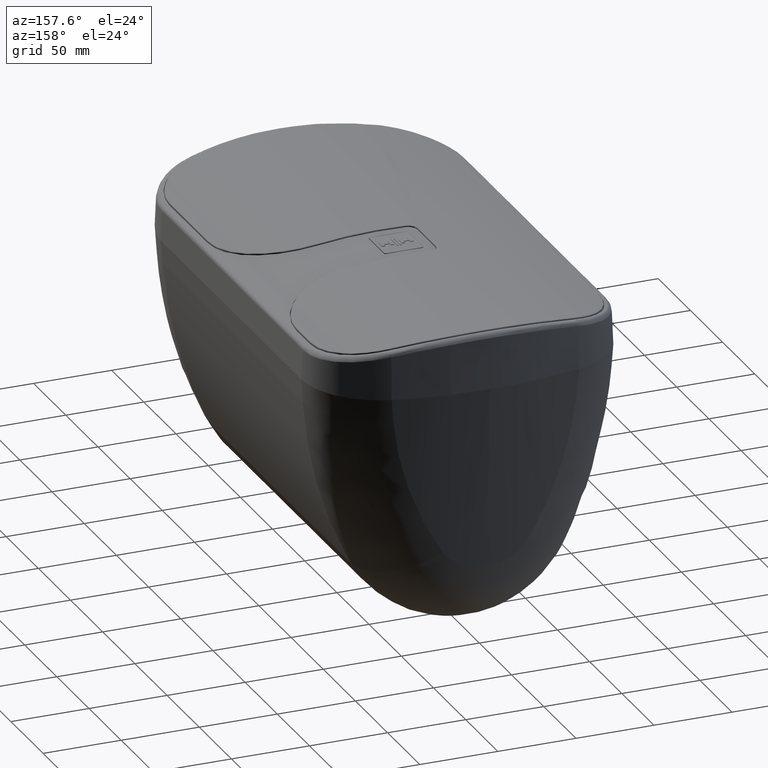
[diagram: clean part render]
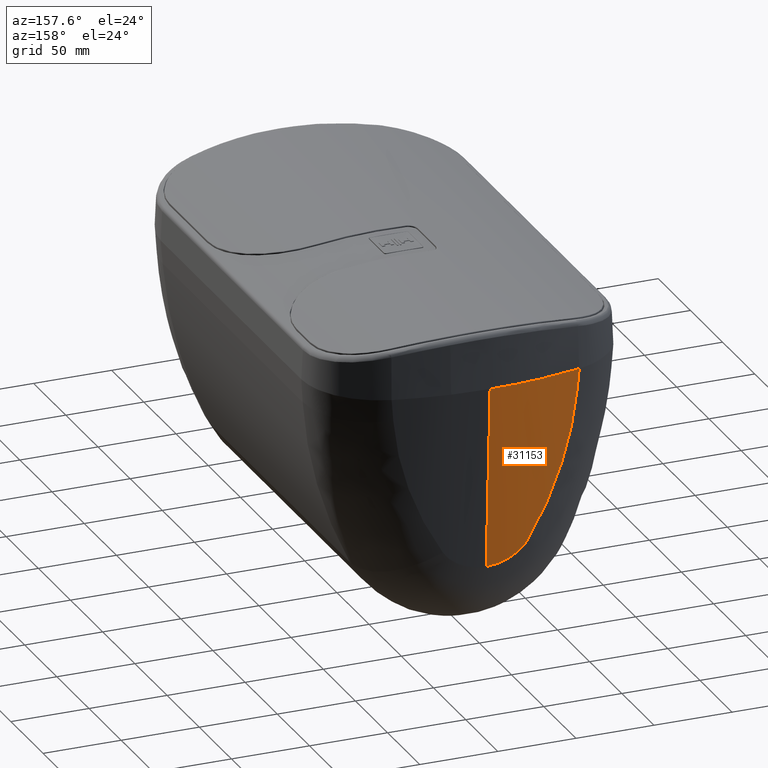
[diagram: same view with one face highlighted and labeled with its STEP entity id]
A machine part, auxiliary view. The second image highlights one B-rep face of the part: STEP entity #31153.
In plain terms, the highlighted cylindrical surface (partial cylindrical patch) has radius 250.1 mm, axis along (0, -0.0523, -0.9986).
Its self-contained STEP definition (entity closure, byte-faithful):
#716 = EDGE_CURVE ( 'Defeatured_0_294+Defeatured_0_276+Defeatured_0_293+Defeatured_0_277', #33960, #34507, #8569, .T. ) ;
#817 = CARTESIAN_POINT ( 'NONE',  ( -17.56351056426971624, 210.1920347754916634, 130.7676854332778476 ) ) ;
#1084 = CARTESIAN_POINT ( 'NONE',  ( -55.07989004637824593, 208.5954634868214441, 205.8574636306641708 ) ) ;
#1173 = CARTESIAN_POINT ( 'NONE',  ( -11.85477433298538941, 210.3973711055220974, 128.2817223637825066 ) ) ;
#1232 = CARTESIAN_POINT ( 'NONE',  ( -60.06147851544996286, 209.4141284594159913, 243.9999914605832601 ) ) ;
#1599 = CARTESIAN_POINT ( 'NONE',  ( -52.76712685021253435, 208.6144289601034814, 196.4497186780752429 ) ) ;
#1664 = B_SPLINE_CURVE_WITH_KNOTS ( 'NONE', 3,
 ( #23771, #4548, #12578, #20420, #31562, #7392, #1875, #10246, #25711, #18448 ),
 .UNSPECIFIED., .F., .F.,
 ( 4, 2, 2, 2, 4 ),
 ( 0.0000000000000000000, 0.01511734114148715648, 0.03023468228297431296, 0.04535202342446147117, 0.06046936456594862591 ),
 .UNSPECIFIED. ) ;
#1875 = CARTESIAN_POINT ( 'NONE',  ( -20.16542860134490311, 215.9785373512072795, 243.9907800341802044 ) ) ;
#3142 = CARTESIAN_POINT ( 'NONE',  ( -19.22123385035990140, 210.1208081338485840, 131.7669693508614159 ) ) ;
#3227 = CARTESIAN_POINT ( 'NONE',  ( -35.65578692959638829, 209.4600904774599144, 153.8051300441916567 ) ) ;
#3320 = CARTESIAN_POINT ( 'NONE',  ( -2.327596318080734417, 210.5732280334680695, 126.4435979247294455 ) ) ;
#3400 = CARTESIAN_POINT ( 'NONE',  ( -37.05995683304539057, 209.3922893106427239, 156.4795703223381054 ) ) ;
#3405 = CARTESIAN_POINT ( 'NONE',  ( -9.978775751341883941E-14, 216.7433994610323396, 244.0000000000000568 ) ) ;
#3497 = CARTESIAN_POINT ( 'NONE',  ( -5.309227279275379630, 210.5424094969016835, 126.7507606232306188 ) ) ;
#3943 = CARTESIAN_POINT ( 'NONE',  ( -55.02632997299314610, 208.5948829768177575, 205.6154493493990003 ) ) ;
#4289 = CARTESIAN_POINT ( 'NONE',  ( -54.94563520305332105, 208.5940809868383496, 205.2524766644475562 ) ) ;
#4458 = CARTESIAN_POINT ( 'NONE',  ( -55.10610957002199228, 208.5957710645969598, 205.9764701484449461 ) ) ;
#4548 = CARTESIAN_POINT ( 'NONE',  ( -55.10956284904348479, 210.6410211319161192, 243.9981331736055949 ) ) ;
#5014 = EDGE_CURVE ( 'NONE', #10426, #11447, #19720, .T. ) ;
#5144 = EDGE_CURVE ( 'Defeatured_0_294+Defeatured_0_278+Defeatured_0_277+Defeatured_0_295', #20749, #10426, #1664, .T. ) ;
#5541 = CARTESIAN_POINT ( 'NONE',  ( -37.75125645778808803, 209.3580805437761114, 157.8193233015022656 ) ) ;
#5714 = CARTESIAN_POINT ( 'NONE',  ( -47.99688895085446916, 208.8091192368576685, 181.4283897044539628 ) ) ;
#5810 = CARTESIAN_POINT ( 'NONE',  ( -8.580621384261140960, 210.4830941117635064, 127.3585751335772898 ) ) ;
#5988 = CARTESIAN_POINT ( 'NONE',  ( -22.42022046140342795, 209.9764657672552062, 134.1191997757960905 ) ) ;
#5994 = CARTESIAN_POINT ( 'NONE',  ( -2.194561182182035503E-14, 223.7116424472169740, 376.9619968926713227 ) ) ;
#6160 = CARTESIAN_POINT ( 'NONE',  ( -1.975192157726474758E-08, 210.5793642802651959, 126.3832021675706585 ) ) ;
#6240 = CARTESIAN_POINT ( 'NONE',  ( -27.47262071041259190, 209.7702916524336558, 139.8634512323720571 ) ) ;
#6335 = CARTESIAN_POINT ( 'NONE',  ( -14.87882149102282447, 210.2968297370910307, 129.4425016966833653 ) ) ;
#6419 = CARTESIAN_POINT ( 'NONE',  ( -54.36338564264912776, 208.5918000570340780, 202.7140579179952624 ) ) ;
#6425 = AXIS2_PLACEMENT_3D ( 'NONE', #25789, #7465, #15660 ) ;
#6769 = CARTESIAN_POINT ( 'NONE',  ( -51.12865793278560744, 208.6628801150488357, 190.6900291148029964 ) ) ;
#6857 = CARTESIAN_POINT ( 'NONE',  ( -27.47262071041259190, 209.7702916524336558, 139.8634512323720571 ) ) ;
#7392 = CARTESIAN_POINT ( 'NONE',  ( -25.18379512407572207, 215.5211122208160077, 243.9900329054777330 ) ) ;
#7465 = DIRECTION ( 'NONE',  ( 5.543507512776180453E-17, -0.05233595624294345300, -0.9986295347545740553 ) ) ;
#7468 = EDGE_LOOP ( 'NONE', ( #23490, #10013, #7874, #17902, #13209 ) ) ;
#7874 = ORIENTED_EDGE ( 'NONE', *, *, #16762, .T. ) ;
#8208 = CARTESIAN_POINT ( 'NONE',  ( -31.94957252809459902, 209.6191840611438693, 147.1977639075242337 ) ) ;
#8392 = CARTESIAN_POINT ( 'NONE',  ( -32.82903755982221128, 209.5835729335465771, 148.7261861896524806 ) ) ;
#8569 = B_SPLINE_CURVE_WITH_KNOTS ( 'NONE', 3,
 ( #6240, #16753, #11252, #22454, #8208, #8392, #27578, #27752, #33046, #19262, #3227, #3400, #5541, #14270, #30040, #32873, #16396, #25091, #33238, #27217, #14102, #24920, #8922, #19804, #5714, #16567, #27388, #25968, #17999, #9618, #17480, #6769, #1599, #28285, #9091, #6419, #11967, #4289, #3943, #1084, #4458, #26138, #25614, #34089, #30940, #28453, #33923, #30759, #17642, #31278, #20664, #14804 ),
 .UNSPECIFIED., .F., .F.,
 ( 4, 2, 1, 1, 2, 2, 2, 1, 1, 1, 2, 2, 2, 2, 1, 1, 1, 1, 2, 2, 2, 2, 1, 1, 1, 2, 2, 2, 1, 1, 2, 2, 4 ),
 ( 0.0000000000000000000, 0.06249999999999052147, 0.09374999999998540057, 0.1093749999999828193, 0.1171874999999815842, 0.1249999999999803629, 0.1874999999999713840, 0.2187499999999664990, 0.2343749999999636957, 0.2421874999999623079, 0.2460937499999612532, 0.2499999999999602263, 0.3749999999999354405, 0.4374999999999226175, 0.4687499999999162337, 0.4843749999999130695, 0.4921874999999114597, 0.4960937499999102940, 0.4980468749999100719, 0.4999999999999099054, 0.6249999999999268363, 0.6874999999999353850, 0.7187499999999400480, 0.7343749999999423794, 0.7421874999999434896, 0.7460937499999441558, 0.7499999999999447109, 0.8124999999999572564, 0.8437499999999634737, 0.8593749999999670264, 0.8671874999999688027, 0.8749999999999706901, 1.000000000000000000 ),
 .UNSPECIFIED. ) ;
#8650 = CARTESIAN_POINT ( 'NONE',  ( -19.46871482515417995, 210.1099483549519391, 131.9256101484361920 ) ) ;
#8922 = CARTESIAN_POINT ( 'NONE',  ( -46.87924097170240145, 208.8670262602655043, 178.4046800115760618 ) ) ;
#9010 = CARTESIAN_POINT ( 'NONE',  ( -0.1665298321013071736, 210.5793367416561352, 126.3834713553985978 ) ) ;
#9091 = CARTESIAN_POINT ( 'NONE',  ( -54.01078355371936368, 208.5942197827036182, 201.2662689122662982 ) ) ;
#9186 = CARTESIAN_POINT ( 'NONE',  ( -15.62756376292096583, 210.2685697962087943, 129.7908704603053422 ) ) ;
#9618 = CARTESIAN_POINT ( 'NONE',  ( -48.55646562294563040, 208.7812394974969834, 183.0018111759661963 ) ) ;
#10013 = ORIENTED_EDGE ( 'NONE', *, *, #5014, .T. ) ;
#10246 = CARTESIAN_POINT ( 'NONE',  ( -10.10246636256095876, 216.5896792585282071, 243.9957604076329574 ) ) ;
#10426 = VERTEX_POINT ( 'NONE', #3405 ) ;
#11252 = CARTESIAN_POINT ( 'NONE',  ( -29.62507993713988697, 209.7046719625143965, 143.2949719128802712 ) ) ;
#11341 = CARTESIAN_POINT ( 'NONE',  ( -16.53147046993241887, 210.2335720618829953, 130.2299997394207480 ) ) ;
#11345 = DIRECTION ( 'NONE',  ( 5.543507512776179837E-17, -0.05233595624294344606, -0.9986295347545739443 ) ) ;
#11447 = VERTEX_POINT ( 'NONE', #32794 ) ;
#11512 = CARTESIAN_POINT ( 'NONE',  ( -0.5826862533813640388, 210.5789793611476739, 126.3869756221923097 ) ) ;
#11706 = CARTESIAN_POINT ( 'NONE',  ( -4.313475865932220543, 210.5549933636457638, 126.6247920100681768 ) ) ;
#11886 = CARTESIAN_POINT ( 'NONE',  ( -11.93525659543126594, 210.3949467720259463, 128.3086803303927752 ) ) ;
#11967 = CARTESIAN_POINT ( 'NONE',  ( -54.75486426765438353, 208.5926886558798117, 204.4058816863839638 ) ) ;
#12059 = CARTESIAN_POINT ( 'NONE',  ( -13.96910790681449654, 210.3295942191503229, 129.0515628915747754 ) ) ;
#12201 = CARTESIAN_POINT ( 'NONE',  ( -58.81366653124624833, 208.9873854294647231, 230.0189387847686362 ) ) ;
#12372 = CARTESIAN_POINT ( 'NONE',  ( -59.64584343643016950, 209.2731086708847670, 239.3395818903283043 ) ) ;
#12578 = CARTESIAN_POINT ( 'NONE',  ( -50.14404991082690799, 211.7104430840003033, 244.0010920800620511 ) ) ;
#12754 = CARTESIAN_POINT ( 'NONE',  ( -25.11279000942553097, 209.8566275381293735, 136.7440783629668601 ) ) ;
#13100 = B_SPLINE_CURVE_WITH_KNOTS ( 'NONE', 3,
 ( #6160, #14366, #9010, #19894, #11512, #33145, #3320, #33505, #11706, #33680, #3497, #27844, #19715, #14552, #19352, #5810, #20069, #25189, #22365, #1173, #11886, #25537, #28206, #17399, #12059, #6335, #22185, #9186, #22896, #27486, #11341, #817, #22726, #16663, #16850, #17212, #3142, #8650, #14019, #24842, #30859, #33330, #30673, #30311, #5988, #27671, #22551, #14192, #28025, #25007, #12754, #25891, #28892, #18268, #34183, #31556, #23592, #6857 ),
 .UNSPECIFIED., .F., .F.,
 ( 4, 2, 1, 1, 1, 2, 2, 1, 2, 2, 1, 1, 2, 2, 1, 1, 1, 2, 2, 1, 1, 1, 2, 2, 1, 1, 1, 1, 2, 2, 1, 1, 1, 1, 2, 2, 1, 1, 1, 1, 4 ),
 ( 0.4998111728014146271, 0.5037188980139025718, 0.5076266232263906275, 0.5154420736513665169, 0.5310729745013184067, 0.5623347762012221862, 0.5779656770511740760, 0.5935965779011258547, 0.6248583796010296343, 0.6326738300260057457, 0.6404892804509818571, 0.6561201813009344130, 0.6873819830008397469, 0.6912897082133282467, 0.6951974334258166355, 0.7030128838507935241, 0.7186437847007473012, 0.7499055864006554106, 0.7538133116131442435, 0.7577210368256328543, 0.7655364872506102980, 0.7811673881005647413, 0.8124291898004736279, 0.8143830524067178223, 0.8163369150129619056, 0.8202446402254508495, 0.8280600906504285152, 0.8436909915003838467, 0.8749527932002956199, 0.8769066558065405914, 0.8788605184127857850, 0.8827682436252757281, 0.8905836940502556143, 0.9062145949002162748, 0.9374763966001377069, 0.9394302592063833446, 0.9413841218126288712, 0.9452918470251200356, 0.9531072974501033634, 0.9687381983000687979, 1.000000000000000000 ),
 .UNSPECIFIED. ) ;
#13209 = ORIENTED_EDGE ( 'NONE', *, *, #25741, .T. ) ;
#13675 = CARTESIAN_POINT ( 'NONE',  ( -58.81366653124624833, 208.9873854294647231, 230.0189387847686362 ) ) ;
#14019 = CARTESIAN_POINT ( 'NONE',  ( -19.95790407021431534, 210.0883022868181911, 132.2477607629287490 ) ) ;
#14102 = CARTESIAN_POINT ( 'NONE',  ( -45.06563280813592343, 208.9649285047929936, 173.7737320632378157 ) ) ;
#14192 = CARTESIAN_POINT ( 'NONE',  ( -23.93726678139636022, 209.9074884260710405, 135.4857717391653580 ) ) ;
#14270 = CARTESIAN_POINT ( 'NONE',  ( -38.53892587711563067, 209.3179411139704200, 159.3867846613585186 ) ) ;
#14366 = CARTESIAN_POINT ( 'NONE',  ( -0.08140576578413401265, 210.5793642815891076, 126.3832021931768139 ) ) ;
#14552 = CARTESIAN_POINT ( 'NONE',  ( -8.089131175525590578, 210.4937133740414765, 127.2480719772026418 ) ) ;
#14648 = CARTESIAN_POINT ( 'NONE',  ( -27.47262071041259190, 209.7702916524336558, 139.8634512323720571 ) ) ;
#14804 = CARTESIAN_POINT ( 'NONE',  ( -58.81366653124624833, 208.9873854294647231, 230.0189387847686362 ) ) ;
#15660 = DIRECTION ( 'NONE',  ( 2.905229181834572442E-18, 0.9986295347545739443, -0.05233595624294339749 ) ) ;
#16396 = CARTESIAN_POINT ( 'NONE',  ( -39.20409532394671714, 209.2835023063159952, 160.7326579100865160 ) ) ;
#16567 = CARTESIAN_POINT ( 'NONE',  ( -48.28869826694687362, 208.7944898343328362, 182.2444839659730178 ) ) ;
#16663 = CARTESIAN_POINT ( 'NONE',  ( -19.00663610421770144, 210.1301732839606586, 131.6316687781620089 ) ) ;
#16753 = CARTESIAN_POINT ( 'NONE',  ( -28.56179581136051482, 209.7393783803989891, 141.5735495303829623 ) ) ;
#16762 = EDGE_CURVE ( 'Defeatured_0_294+Defeatured_0_293+Defeatured_0_300+Defeatured_0_276', #11447, #33960, #13100, .T. ) ;
#16850 = CARTESIAN_POINT ( 'NONE',  ( -19.04329331307870277, 210.1285768571247274, 131.6546400564978967 ) ) ;
#17212 = CARTESIAN_POINT ( 'NONE',  ( -19.11455200782083708, 210.1254686319728080, 131.6995022003674762 ) ) ;
#17399 = CARTESIAN_POINT ( 'NONE',  ( -12.88146102467750076, 210.3655294737690724, 128.6390984104313873 ) ) ;
#17480 = CARTESIAN_POINT ( 'NONE',  ( -49.91444435137163538, 208.7145577184672334, 186.8670864036949126 ) ) ;
#17642 = CARTESIAN_POINT ( 'NONE',  ( -57.30980364305274577, 208.7026711446590923, 217.7278957278136886 ) ) ;
#17902 = ORIENTED_EDGE ( 'NONE', *, *, #716, .T. ) ;
#17999 = CARTESIAN_POINT ( 'NONE',  ( -48.53631737752587583, 208.7822306958561001, 182.9445485831700182 ) ) ;
#18268 = CARTESIAN_POINT ( 'NONE',  ( -25.44566757300264470, 209.8427588933341497, 137.1248557372590824 ) ) ;
#18448 = CARTESIAN_POINT ( 'NONE',  ( -9.978775751341883941E-14, 216.7433994610323396, 244.0000000000000568 ) ) ;
#19262 = CARTESIAN_POINT ( 'NONE',  ( -34.69091183226286290, 209.5044731452275357, 152.0289239044425926 ) ) ;
#19352 = CARTESIAN_POINT ( 'NONE',  ( -8.254404259551515466, 210.4902096308450155, 127.2844423163999892 ) ) ;
#19715 = CARTESIAN_POINT ( 'NONE',  ( -7.278134466815253667, 210.5104102283693805, 127.0752743386911447 ) ) ;
#19720 = LINE ( 'NONE', #5994, #23502 ) ;
#19804 = CARTESIAN_POINT ( 'NONE',  ( -47.40381505319884781, 208.8394050535431461, 179.7982990516926805 ) ) ;
#19894 = CARTESIAN_POINT ( 'NONE',  ( -0.3330150562042856199, 210.5792267477562802, 126.3845494689629874 ) ) ;
#20069 = CARTESIAN_POINT ( 'NONE',  ( -9.068593246971214938, 210.4721530775341591, 127.4729562284645255 ) ) ;
#20420 = CARTESIAN_POINT ( 'NONE',  ( -40.18640507682586360, 213.5410597260323016, 243.9974691427121343 ) ) ;
#20664 = CARTESIAN_POINT ( 'NONE',  ( -58.45580222419641103, 208.8639648863842240, 226.0095519723393522 ) ) ;
#20749 = VERTEX_POINT ( 'NONE', #1232 ) ;
#22185 = CARTESIAN_POINT ( 'NONE',  ( -15.54982515092286022, 210.2715191702668847, 129.7543919125239142 ) ) ;
#22365 = CARTESIAN_POINT ( 'NONE',  ( -11.14926072003853363, 210.4184321082966562, 128.0481342394581930 ) ) ;
#22454 = CARTESIAN_POINT ( 'NONE',  ( -31.18120774955361796, 209.6483852768149347, 145.8940149585986603 ) ) ;
#22551 = CARTESIAN_POINT ( 'NONE',  ( -23.08413535575956743, 209.9461509733545199, 134.6956652244117834 ) ) ;
#22726 = CARTESIAN_POINT ( 'NONE',  ( -18.41689330535091784, 210.1558171955905436, 131.2637213002720671 ) ) ;
#22896 = CARTESIAN_POINT ( 'NONE',  ( -15.77933541421342234, 210.2627777714108106, 129.8627960688696135 ) ) ;
#23036 = CARTESIAN_POINT ( 'NONE',  ( -59.22988430233705515, 209.1307808117790330, 234.6792323642885947 ) ) ;
#23076 = B_SPLINE_CURVE_WITH_KNOTS ( 'NONE', 3,
 ( #12201, #23036, #12372, #33975 ),
 .UNSPECIFIED., .F., .F.,
 ( 4, 4 ),
 ( 0.0000000000000000000, 1.000000000000000000 ),
 .UNSPECIFIED. ) ;
#23490 = ORIENTED_EDGE ( 'NONE', *, *, #5144, .T. ) ;
#23502 = VECTOR ( 'NONE', #11345, 1000.000000000000114 ) ;
#23592 = CARTESIAN_POINT ( 'NONE',  ( -27.11794248827129650, 209.7803582288325686, 139.3065760123110124 ) ) ;
#23771 = CARTESIAN_POINT ( 'NONE',  ( -60.06147851544996286, 209.4141284594159913, 243.9999914605832601 ) ) ;
#24842 = CARTESIAN_POINT ( 'NONE',  ( -20.91319667103152113, 210.0454196690971855, 132.9115320130477471 ) ) ;
#24920 = CARTESIAN_POINT ( 'NONE',  ( -45.80841691585506226, 208.9242112544374663, 175.6222582819746947 ) ) ;
#25007 = CARTESIAN_POINT ( 'NONE',  ( -25.08377717347652336, 209.8578496494096441, 136.7114856110539449 ) ) ;
#25091 = CARTESIAN_POINT ( 'NONE',  ( -39.25852492493822865, 209.2806640649154133, 160.8436818594165061 ) ) ;
#25189 = CARTESIAN_POINT ( 'NONE',  ( -10.19771287530359238, 210.4448047010582741, 127.7621156516749750 ) ) ;
#25537 = CARTESIAN_POINT ( 'NONE',  ( -12.09376620177871331, 210.3901286111083948, 128.3624074411844731 ) ) ;
#25614 = CARTESIAN_POINT ( 'NONE',  ( -55.96530854452448978, 208.6132319356775326, 210.0428520132000187 ) ) ;
#25711 = CARTESIAN_POINT ( 'NONE',  ( -5.057870942105703094, 216.7433994610323111, 244.0000000000000853 ) ) ;
#25741 = EDGE_CURVE ( 'Defeatured_0_294+Defeatured_0_277+Defeatured_0_276+Defeatured_0_278', #34507, #20749, #23076, .T. ) ;
#25789 = CARTESIAN_POINT ( 'NONE',  ( -2.267220964019718301E-14, -26.04560419490198342, 390.0512195490314866 ) ) ;
#25891 = CARTESIAN_POINT ( 'NONE',  ( -25.16875479004525218, 209.8542773212825807, 136.8072736517875683 ) ) ;
#25968 = CARTESIAN_POINT ( 'NONE',  ( -48.49519280594710580, 208.7842574022280360, 182.8278389242680362 ) ) ;
#26138 = CARTESIAN_POINT ( 'NONE',  ( -55.56487011752366101, 208.6015820595522143, 208.0684305524368654 ) ) ;
#26306 = FACE_OUTER_BOUND ( 'NONE', #7468, .T. ) ;
#26483 = CYLINDRICAL_SURFACE ( 'NONE', #6425, 250.1000000000000227 ) ;
#27217 = CARTESIAN_POINT ( 'NONE',  ( -42.75024111618635203, 209.0925375574863097, 168.2475400298631598 ) ) ;
#27388 = CARTESIAN_POINT ( 'NONE',  ( -48.43342159938993774, 208.7873070753535387, 182.6527931436401673 ) ) ;
#27486 = CARTESIAN_POINT ( 'NONE',  ( -16.00634224703230402, 210.2540647749407583, 129.9714176694991181 ) ) ;
#27578 = CARTESIAN_POINT ( 'NONE',  ( -33.20231839718726263, 209.5680126451905494, 149.3828044423037795 ) ) ;
#27671 = CARTESIAN_POINT ( 'NONE',  ( -22.64381805047764118, 209.9662441920761751, 134.3098197522104726 ) ) ;
#27752 = CARTESIAN_POINT ( 'NONE',  ( -33.45036520156541826, 209.5575763795889657, 149.8209008975786105 ) ) ;
#27844 = CARTESIAN_POINT ( 'NONE',  ( -6.298494405616954950, 210.5282038310341193, 126.8936854231821627 ) ) ;
#28025 = CARTESIAN_POINT ( 'NONE',  ( -24.62140304196932306, 209.8773800510817580, 136.1945535076156943 ) ) ;
#28206 = CARTESIAN_POINT ( 'NONE',  ( -12.33106097496174769, 210.3828512778272284, 128.4437777107740430 ) ) ;
#28285 = CARTESIAN_POINT ( 'NONE',  ( -53.28280709437810003, 208.6031056254693681, 198.3738286811477849 ) ) ;
#28453 = CARTESIAN_POINT ( 'NONE',  ( -57.07321649888064741, 208.6802682952065879, 216.2381480459352474 ) ) ;
#28892 = CARTESIAN_POINT ( 'NONE',  ( -25.25242022349288007, 209.8507743195291368, 136.9022219797088553 ) ) ;
#30040 = CARTESIAN_POINT ( 'NONE',  ( -38.92805254587113239, 209.2978517679942740, 160.1716174214928401 ) ) ;
#30311 = CARTESIAN_POINT ( 'NONE',  ( -22.32365589833379715, 209.9808822449872139, 134.0379990372642283 ) ) ;
#30673 = CARTESIAN_POINT ( 'NONE',  ( -22.25911572751797962, 209.9838343302599810, 133.9839748964058970 ) ) ;
#30759 = CARTESIAN_POINT ( 'NONE',  ( -57.27130618900853420, 208.6988216129861087, 217.4813369153208384 ) ) ;
#30859 = CARTESIAN_POINT ( 'NONE',  ( -21.69246082672075460, 210.0097563699630427, 133.5138354761032247 ) ) ;
#30940 = CARTESIAN_POINT ( 'NONE',  ( -56.78429995987865198, 208.6568733949039256, 214.4997207260661867 ) ) ;
#31153 = ADVANCED_FACE ( 'Defeatured_0_294', ( #26306 ), #26483, .T. ) ;
#31278 = CARTESIAN_POINT ( 'NONE',  ( -57.96759687933079874, 208.7711878160853018, 221.9961885362690737 ) ) ;
#31556 = CARTESIAN_POINT ( 'NONE',  ( -26.54995581233943369, 209.7993294854802571, 138.4911005620294304 ) ) ;
#31562 = CARTESIAN_POINT ( 'NONE',  ( -35.19428319308486408, 214.3023714507924637, 243.9933691851157107 ) ) ;
#32794 = CARTESIAN_POINT ( 'NONE',  ( -1.975192157726474758E-08, 210.5793642802651959, 126.3832021675706585 ) ) ;
#32873 = CARTESIAN_POINT ( 'NONE',  ( -39.09381264858001259, 209.2892418516490238, 160.5082102685812799 ) ) ;
#33046 = CARTESIAN_POINT ( 'NONE',  ( -33.57298767706083709, 209.5523696106662896, 150.0383486631654364 ) ) ;
#33145 = CARTESIAN_POINT ( 'NONE',  ( -1.164855038182872615, 210.5778265398579663, 126.3982994644998428 ) ) ;
#33238 = CARTESIAN_POINT ( 'NONE',  ( -41.09058615885049903, 209.1849480686909715, 164.5892576198444601 ) ) ;
#33330 = CARTESIAN_POINT ( 'NONE',  ( -22.22577845452017087, 209.9853593296203940, 133.9562006108158698 ) ) ;
#33505 = CARTESIAN_POINT ( 'NONE',  ( -3.321471576081699517, 210.5653883501241239, 126.5212533732523212 ) ) ;
#33680 = CARTESIAN_POINT ( 'NONE',  ( -4.647581201653104621, 210.5510574605800684, 126.6640707675716300 ) ) ;
#33923 = CARTESIAN_POINT ( 'NONE',  ( -57.19265455958010591, 208.6912694594909397, 216.9839586963595650 ) ) ;
#33960 = VERTEX_POINT ( 'NONE', #14648 ) ;
#33975 = CARTESIAN_POINT ( 'NONE',  ( -60.06147851544996286, 209.4141284594159913, 243.9999914605832601 ) ) ;
#34089 = CARTESIAN_POINT ( 'NONE',  ( -56.51911202867016470, 208.6406672809850704, 213.0127243972022200 ) ) ;
#34183 = CARTESIAN_POINT ( 'NONE',  ( -25.82427562751372463, 209.8273766837913286, 137.5744730676809979 ) ) ;
#34507 = VERTEX_POINT ( 'NONE', #13675 ) ;